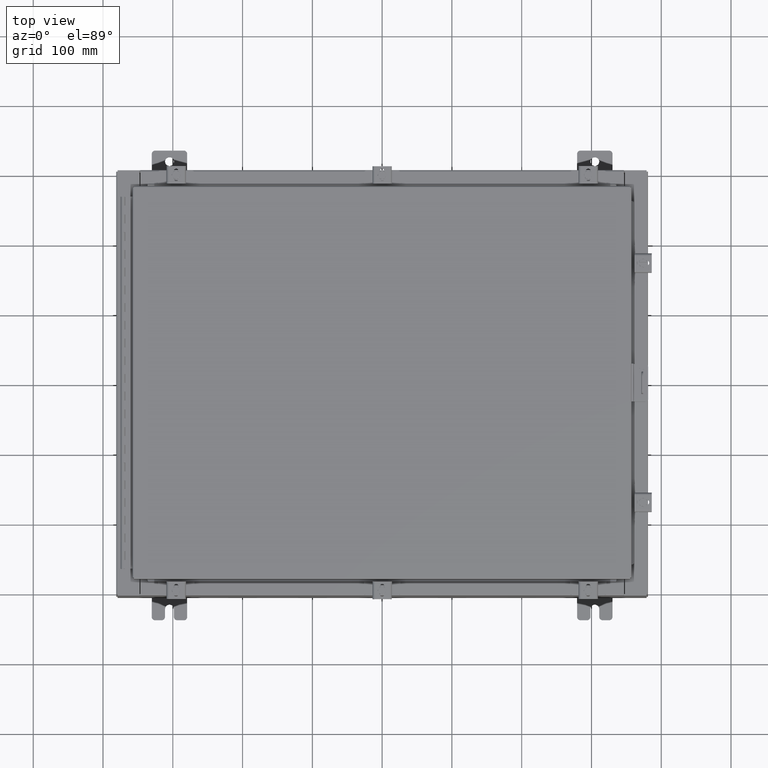
[diagram: clean part render]
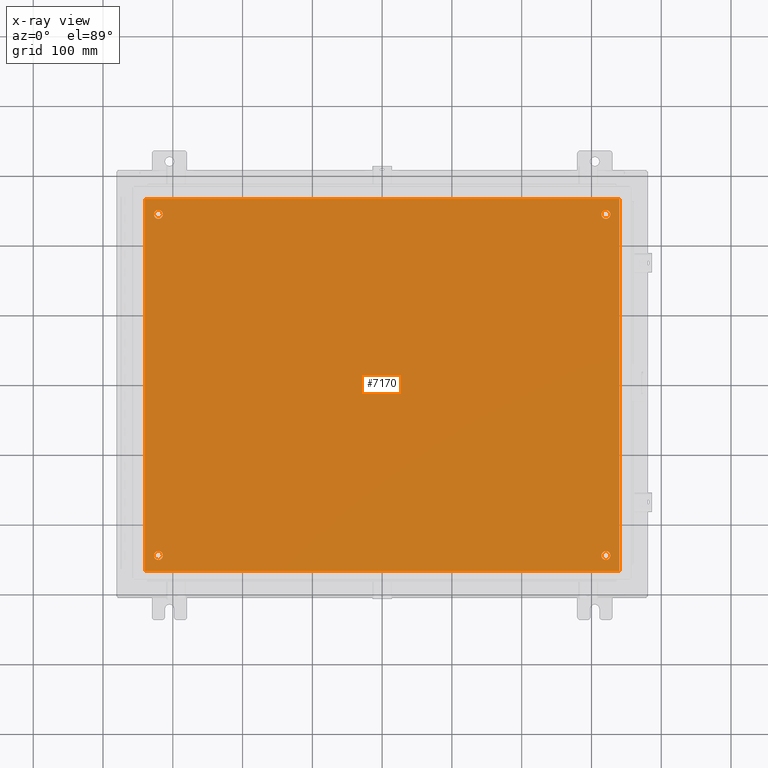
[diagram: x-ray — body ghosted, one internal face saturated and labeled with its STEP entity id]
A machine part, top view, then the same camera in x-ray: the body is ghosted and one INTERNAL B-rep face — a face not visible from any outside direction — is saturated and labeled: STEP entity #7170.
In plain terms, the highlighted planar face has unit normal (0, 0, -1).
Its self-contained STEP definition (entity closure, byte-faithful):
#771 = DIRECTION ( 'NONE',  ( 0.0000000000000000000, -1.000000000000000000, 0.0000000000000000000 ) ) ;
#1091 = CARTESIAN_POINT ( 'NONE',  ( 13.38300000000000100, -10.50000000000000000, -0.1039999999999999800 ) ) ;
#1278 = DIRECTION ( 'NONE',  ( -0.0000000000000000000, -0.0000000000000000000, 1.000000000000000000 ) ) ;
#1308 = CIRCLE ( 'NONE', #19359, 0.2499999999999987000 ) ;
#1606 = CARTESIAN_POINT ( 'NONE',  ( 12.62499999999999800, -9.625000000000001800, -0.1039999999999999800 ) ) ;
#1756 = FACE_BOUND ( 'NONE', #30952, .T. ) ;
#1871 = VERTEX_POINT ( 'NONE', #19991 ) ;
#2050 = EDGE_CURVE ( 'NONE', #25550, #30757, #25121, .T. ) ;
#2284 = ORIENTED_EDGE ( 'NONE', *, *, #13113, .T. ) ;
#2521 = EDGE_CURVE ( 'NONE', #16034, #30347, #22312, .T. ) ;
#4001 = DIRECTION ( 'NONE',  ( -1.000000000000000000, 0.0000000000000000000, 0.0000000000000000000 ) ) ;
#5121 = VERTEX_POINT ( 'NONE', #26267 ) ;
#5793 = ORIENTED_EDGE ( 'NONE', *, *, #32516, .T. ) ;
#5998 = VERTEX_POINT ( 'NONE', #30752 ) ;
#6209 = CARTESIAN_POINT ( 'NONE',  ( 12.62499999999999800, 9.625000000000001800, -0.1039999999999999800 ) ) ;
#6930 = DIRECTION ( 'NONE',  ( 0.0000000000000000000, 1.000000000000000000, 0.0000000000000000000 ) ) ;
#7170 = ADVANCED_FACE ( 'NONE', ( #14209, #27658, #1756, #20897, #7372 ), #17015, .T. ) ;
#7288 = ORIENTED_EDGE ( 'NONE', *, *, #2050, .T. ) ;
#7372 = FACE_OUTER_BOUND ( 'NONE', #25596, .T. ) ;
#7727 = LINE ( 'NONE', #11679, #13770 ) ;
#7915 = DIRECTION ( 'NONE',  ( -0.0000000000000000000, -0.0000000000000000000, 1.000000000000000000 ) ) ;
#8194 = EDGE_CURVE ( 'NONE', #30347, #23936, #20485, .T. ) ;
#8199 = ORIENTED_EDGE ( 'NONE', *, *, #16820, .T. ) ;
#8348 = DIRECTION ( 'NONE',  ( -0.0000000000000000000, -0.0000000000000000000, 1.000000000000000000 ) ) ;
#8694 = CARTESIAN_POINT ( 'NONE',  ( -12.87499999999999600, 9.625000000000001800, -0.1039999999999999800 ) ) ;
#8729 = DIRECTION ( 'NONE',  ( -1.000000000000000000, 0.0000000000000000000, 0.0000000000000000000 ) ) ;
#8880 = ORIENTED_EDGE ( 'NONE', *, *, #21289, .T. ) ;
#9075 = CARTESIAN_POINT ( 'NONE',  ( -12.62499999999999800, 9.625000000000001800, -0.1039999999999999800 ) ) ;
#9088 = VERTEX_POINT ( 'NONE', #1091 ) ;
#9275 = DIRECTION ( 'NONE',  ( -0.0000000000000000000, -0.0000000000000000000, 1.000000000000000000 ) ) ;
#9456 = DIRECTION ( 'NONE',  ( -1.000000000000000000, 0.0000000000000000000, -0.0000000000000000000 ) ) ;
#9720 = EDGE_CURVE ( 'NONE', #9088, #16034, #27826, .T. ) ;
#9735 = ORIENTED_EDGE ( 'NONE', *, *, #2521, .F. ) ;
#11647 = DIRECTION ( 'NONE',  ( -1.000000000000000000, 0.0000000000000000000, 0.0000000000000000000 ) ) ;
#11659 = AXIS2_PLACEMENT_3D ( 'NONE', #11832, #24610, #9456 ) ;
#11679 = CARTESIAN_POINT ( 'NONE',  ( -13.49999999999999500, -10.50000000000000000, -0.1039999999999999800 ) ) ;
#11832 = CARTESIAN_POINT ( 'NONE',  ( 0.0000000000000000000, 0.0000000000000000000, -0.1039999999999999800 ) ) ;
#12384 = EDGE_LOOP ( 'NONE', ( #8880, #7288 ) ) ;
#12705 = EDGE_CURVE ( 'NONE', #5121, #20094, #32490, .T. ) ;
#12727 = CIRCLE ( 'NONE', #26371, 0.2499999999999987000 ) ;
#12750 = CARTESIAN_POINT ( 'NONE',  ( -13.38299999999999900, -10.50000000000000000, -0.1040000000000041900 ) ) ;
#13113 = EDGE_CURVE ( 'NONE', #5998, #1871, #26417, .T. ) ;
#13118 = CARTESIAN_POINT ( 'NONE',  ( 12.62499999999999800, -9.625000000000001800, -0.1039999999999999800 ) ) ;
#13122 = VERTEX_POINT ( 'NONE', #29043 ) ;
#13770 = VECTOR ( 'NONE', #21838, 39.37007874015748100 ) ;
#14209 = FACE_BOUND ( 'NONE', #17516, .T. ) ;
#14765 = AXIS2_PLACEMENT_3D ( 'NONE', #9075, #26833, #11647 ) ;
#14865 = VECTOR ( 'NONE', #31139, 39.37007874015748100 ) ;
#15632 = DIRECTION ( 'NONE',  ( -1.000000000000000000, 0.0000000000000000000, 0.0000000000000000000 ) ) ;
#15935 = ORIENTED_EDGE ( 'NONE', *, *, #12705, .T. ) ;
#16034 = VERTEX_POINT ( 'NONE', #20540 ) ;
#16170 = CARTESIAN_POINT ( 'NONE',  ( 12.62499999999999800, 9.625000000000001800, -0.1039999999999999800 ) ) ;
#16340 = CARTESIAN_POINT ( 'NONE',  ( -13.38299999999999900, 10.50000000000000200, -0.1040000000000041900 ) ) ;
#16820 = EDGE_CURVE ( 'NONE', #20094, #5121, #20860, .T. ) ;
#16826 = EDGE_CURVE ( 'NONE', #1871, #5998, #19286, .T. ) ;
#17015 = PLANE ( 'NONE',  #11659 ) ;
#17357 = CARTESIAN_POINT ( 'NONE',  ( -12.37499999999999800, -9.625000000000001800, -0.1039999999999999800 ) ) ;
#17516 = EDGE_LOOP ( 'NONE', ( #8199, #15935 ) ) ;
#17703 = EDGE_CURVE ( 'NONE', #23936, #9088, #7727, .T. ) ;
#18181 = EDGE_CURVE ( 'NONE', #13122, #21712, #1308, .T. ) ;
#18257 = CARTESIAN_POINT ( 'NONE',  ( -13.38299999999999900, 10.50000000000000400, -0.1040000000000041900 ) ) ;
#18317 = CARTESIAN_POINT ( 'NONE',  ( -13.50000000000000000, 10.50000000000000200, -0.1039999999999999800 ) ) ;
#18540 = ORIENTED_EDGE ( 'NONE', *, *, #8194, .F. ) ;
#18702 = DIRECTION ( 'NONE',  ( -1.000000000000000000, 0.0000000000000000000, 0.0000000000000000000 ) ) ;
#18751 = ORIENTED_EDGE ( 'NONE', *, *, #18181, .T. ) ;
#19041 = DIRECTION ( 'NONE',  ( -0.0000000000000000000, -0.0000000000000000000, 1.000000000000000000 ) ) ;
#19286 = CIRCLE ( 'NONE', #21201, 0.2499999999999987000 ) ;
#19359 = AXIS2_PLACEMENT_3D ( 'NONE', #6209, #23892, #8729 ) ;
#19608 = CARTESIAN_POINT ( 'NONE',  ( 13.38300000000000300, -10.50000000000000200, -0.1040000000000009100 ) ) ;
#19713 = VECTOR ( 'NONE', #771, 39.37007874015748100 ) ;
#19991 = CARTESIAN_POINT ( 'NONE',  ( 12.37499999999999800, -9.625000000000001800, -0.1039999999999999800 ) ) ;
#20094 = VERTEX_POINT ( 'NONE', #17357 ) ;
#20485 = LINE ( 'NONE', #18257, #19713 ) ;
#20540 = CARTESIAN_POINT ( 'NONE',  ( 13.38300000000000400, 10.50000000000000200, -0.1039999999999999800 ) ) ;
#20860 = CIRCLE ( 'NONE', #21255, 0.2499999999999987000 ) ;
#20897 = FACE_BOUND ( 'NONE', #12384, .T. ) ;
#21051 = VECTOR ( 'NONE', #6930, 39.37007874015748100 ) ;
#21201 = AXIS2_PLACEMENT_3D ( 'NONE', #13118, #30862, #15632 ) ;
#21255 = AXIS2_PLACEMENT_3D ( 'NONE', #23085, #7915, #25673 ) ;
#21289 = EDGE_CURVE ( 'NONE', #30757, #25550, #23352, .T. ) ;
#21712 = VERTEX_POINT ( 'NONE', #29939 ) ;
#21838 = DIRECTION ( 'NONE',  ( 1.000000000000000000, 0.0000000000000000000, 0.0000000000000000000 ) ) ;
#22312 = LINE ( 'NONE', #18317, #14865 ) ;
#23085 = CARTESIAN_POINT ( 'NONE',  ( -12.62499999999999800, -9.625000000000001800, -0.1039999999999999800 ) ) ;
#23350 = AXIS2_PLACEMENT_3D ( 'NONE', #23502, #8348, #26109 ) ;
#23352 = CIRCLE ( 'NONE', #14765, 0.2499999999999987000 ) ;
#23502 = CARTESIAN_POINT ( 'NONE',  ( -12.62499999999999800, 9.625000000000001800, -0.1039999999999999800 ) ) ;
#23892 = DIRECTION ( 'NONE',  ( -0.0000000000000000000, -0.0000000000000000000, 1.000000000000000000 ) ) ;
#23936 = VERTEX_POINT ( 'NONE', #12750 ) ;
#24309 = EDGE_LOOP ( 'NONE', ( #2284, #29469 ) ) ;
#24432 = ORIENTED_EDGE ( 'NONE', *, *, #9720, .F. ) ;
#24450 = CARTESIAN_POINT ( 'NONE',  ( -12.62499999999999800, -9.625000000000001800, -0.1039999999999999800 ) ) ;
#24610 = DIRECTION ( 'NONE',  ( 0.0000000000000000000, 0.0000000000000000000, -1.000000000000000000 ) ) ;
#25121 = CIRCLE ( 'NONE', #23350, 0.2499999999999987000 ) ;
#25550 = VERTEX_POINT ( 'NONE', #8694 ) ;
#25596 = EDGE_LOOP ( 'NONE', ( #27957, #18540, #9735, #24432 ) ) ;
#25673 = DIRECTION ( 'NONE',  ( -1.000000000000000000, 0.0000000000000000000, 0.0000000000000000000 ) ) ;
#25761 = AXIS2_PLACEMENT_3D ( 'NONE', #1606, #19041, #4001 ) ;
#26109 = DIRECTION ( 'NONE',  ( -1.000000000000000000, 0.0000000000000000000, 0.0000000000000000000 ) ) ;
#26267 = CARTESIAN_POINT ( 'NONE',  ( -12.87499999999999600, -9.625000000000001800, -0.1039999999999999800 ) ) ;
#26371 = AXIS2_PLACEMENT_3D ( 'NONE', #16170, #1278, #18702 ) ;
#26417 = CIRCLE ( 'NONE', #25761, 0.2499999999999987000 ) ;
#26472 = AXIS2_PLACEMENT_3D ( 'NONE', #24450, #9275, #27043 ) ;
#26833 = DIRECTION ( 'NONE',  ( -0.0000000000000000000, -0.0000000000000000000, 1.000000000000000000 ) ) ;
#27043 = DIRECTION ( 'NONE',  ( -1.000000000000000000, 0.0000000000000000000, 0.0000000000000000000 ) ) ;
#27658 = FACE_BOUND ( 'NONE', #24309, .T. ) ;
#27826 = LINE ( 'NONE', #19608, #21051 ) ;
#27957 = ORIENTED_EDGE ( 'NONE', *, *, #17703, .F. ) ;
#28395 = CARTESIAN_POINT ( 'NONE',  ( -12.37499999999999800, 9.625000000000001800, -0.1039999999999999800 ) ) ;
#29043 = CARTESIAN_POINT ( 'NONE',  ( 12.87499999999999600, 9.625000000000001800, -0.1039999999999999800 ) ) ;
#29469 = ORIENTED_EDGE ( 'NONE', *, *, #16826, .T. ) ;
#29939 = CARTESIAN_POINT ( 'NONE',  ( 12.37499999999999800, 9.625000000000001800, -0.1039999999999999800 ) ) ;
#30347 = VERTEX_POINT ( 'NONE', #16340 ) ;
#30752 = CARTESIAN_POINT ( 'NONE',  ( 12.87499999999999600, -9.625000000000001800, -0.1039999999999999800 ) ) ;
#30757 = VERTEX_POINT ( 'NONE', #28395 ) ;
#30862 = DIRECTION ( 'NONE',  ( -0.0000000000000000000, -0.0000000000000000000, 1.000000000000000000 ) ) ;
#30952 = EDGE_LOOP ( 'NONE', ( #18751, #5793 ) ) ;
#31139 = DIRECTION ( 'NONE',  ( -1.000000000000000000, -0.0000000000000000000, -0.0000000000000000000 ) ) ;
#32490 = CIRCLE ( 'NONE', #26472, 0.2499999999999987000 ) ;
#32516 = EDGE_CURVE ( 'NONE', #21712, #13122, #12727, .T. ) ;